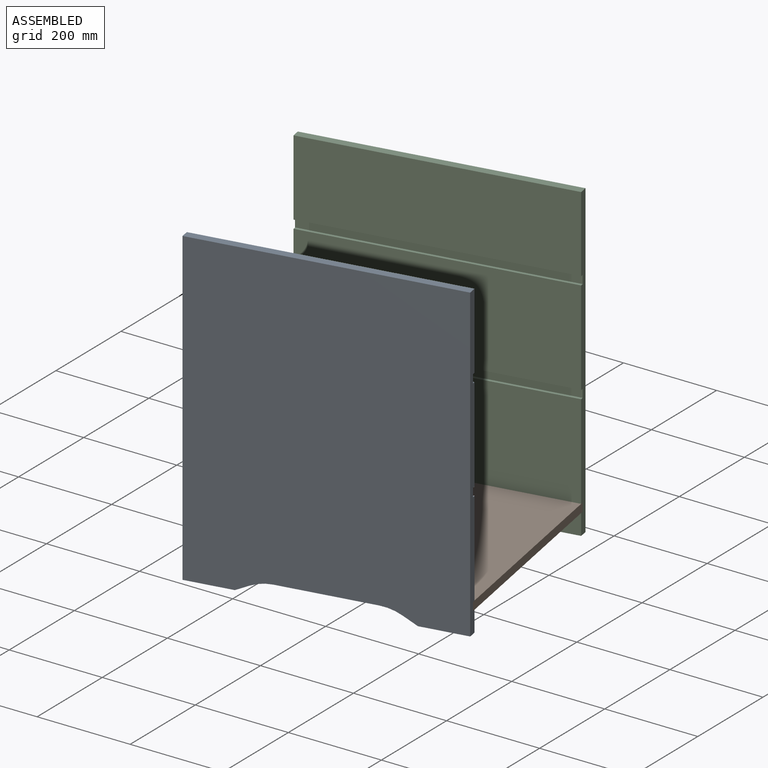
[diagram: assembled view]
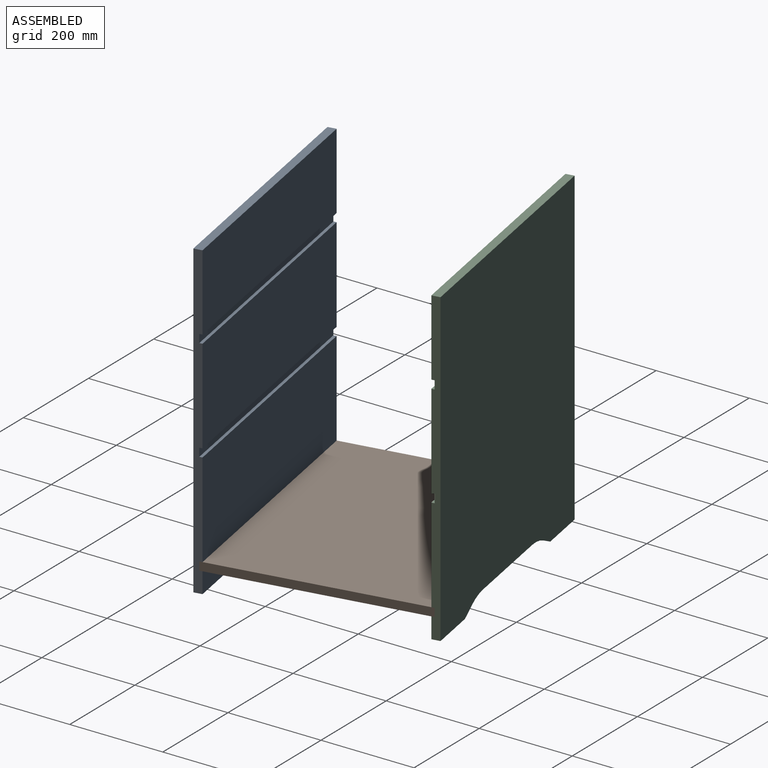
[diagram: assembled view, second angle]
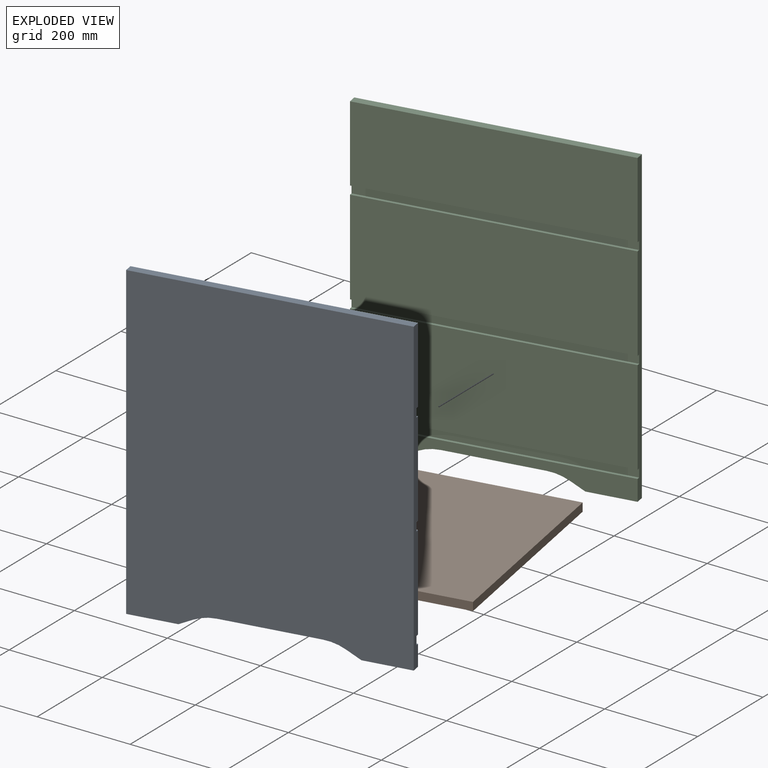
[diagram: exploded view]
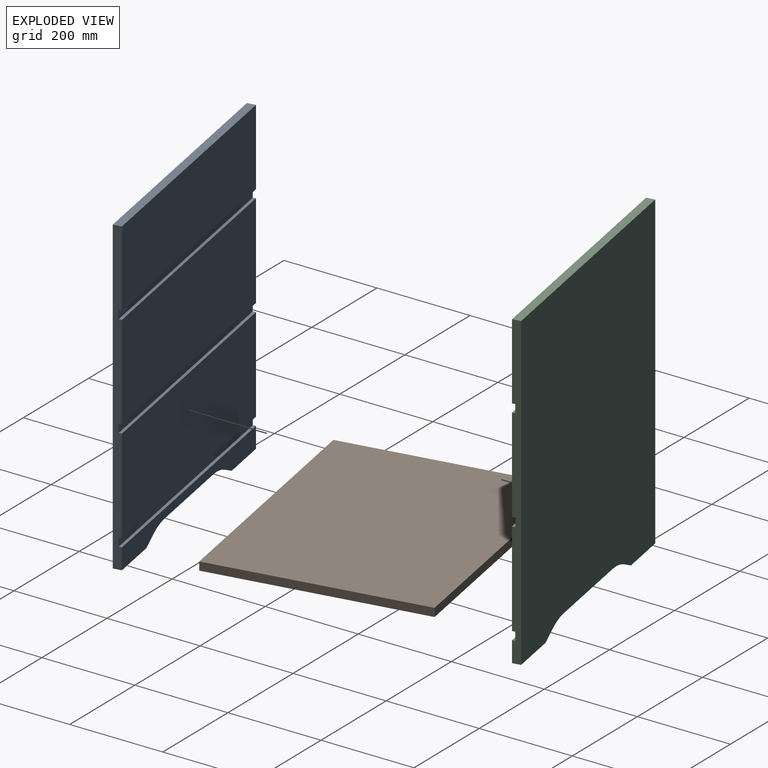
[diagram: exploded view, second angle]
ASSEMBLY  parts=3 mates=2
PART A: 24 faces, bbox 558.8x17.9x668 mm
  f0: plane 558.8x203.2mm, normal (0,-1,0), area 113548.2mm2, adj f3,f8,f18,f21
  f1: plane 558.8x203.2mm, normal (0,-1,0), area 113548.2mm2, adj f3,f8,f16,f19
  f2: plane 558.8x163.6mm, normal (0,-1,0), area 91420.5mm2, adj f3,f7,f8,f15
  f3: plane 668.02x17.86mm, normal (1,0,0), area 11588.1mm2, adj f0,f1,f2,f5,f6,f7,f9,f15
  f4: plane 101.6x17.86mm, normal (0,0,-1), area 1814.2mm2, adj f5,f6,f8,f10
  f5: plane 558.8x44.45mm, normal (0,-1,0), area 17184.4mm2, adj f3,f4,f8,f9,f10,f11,f12,f13
  f6: plane 668.02x558.8mm, normal (0,1,0), area 365635.3mm2, adj f3,f4,f7,f8,f9,f10,f11,f12
  f7: plane 558.8x17.86mm, normal (0,0,1), area 9978mm2, adj f2,f3,f6,f8
  f8: plane 668.02x17.86mm, normal (-1,0,0), area 11588.1mm2, adj f0,f1,f2,f4,f5,f6,f7,f15
  f9: plane 101.6x17.86mm, normal (0,0,-1), area 1814.2mm2, adj f3,f5,f6,f11
  f10: plane 29.35x17.86mm, normal (0.45,0,-0.89), area 585.9mm2, adj f4,f5,f6,f14
  f11: plane 29.35x17.86mm, normal (-0.45,0,-0.89), area 585.9mm2, adj f5,f6,f9,f12
  f12: cylinder r=101.6mm len=45.44mm, axis (0,-1,0), area 841.1mm2, adj f5,f6,f11,f13
  f13: plane 206.03x17.86mm, normal (0,0,-1), area 3678.9mm2, adj f5,f6,f12,f14
  f14: cylinder r=101.6mm len=45.44mm, axis (0,-1,0), area 841.1mm2, adj f5,f6,f10,f13
  f15: plane 558.8x6.35mm, normal (0,0,-1), area 3548.4mm2, adj f2,f3,f8,f17
  f16: plane 558.8x6.35mm, normal (0,0,1), area 3548.4mm2, adj f1,f3,f8,f17
  f17: plane 558.8x17.86mm, normal (0,-1,0), area 9978mm2, adj f3,f8,f15,f16
  f18: plane 558.8x6.35mm, normal (0,0,1), area 3548.4mm2, adj f0,f3,f8,f20
  f19: plane 558.8x6.35mm, normal (0,0,-1), area 3548.4mm2, adj f1,f3,f8,f20
  f20: plane 558.8x17.86mm, normal (0,-1,0), area 9978mm2, adj f3,f8,f18,f19
  f21: plane 558.8x6.35mm, normal (0,0,-1), area 3548.4mm2, adj f0,f3,f8,f23
  f22: plane 558.8x6.35mm, normal (0,0,1), area 3548.4mm2, adj f3,f5,f8,f23
  f23: plane 558.8x17.86mm, normal (0,-1,0), area 9978mm2, adj f3,f8,f21,f22
PART B: 6 faces, bbox 457.2x558.8x17.9 mm
  f0: plane 558.8x17.86mm, normal (1,0,0), area 9978mm2, adj f1,f3,f4,f5
  f1: plane 457.2x17.86mm, normal (0,1,0), area 8163.9mm2, adj f0,f2,f4,f5
  f2: plane 558.8x17.86mm, normal (-1,0,0), area 9978mm2, adj f1,f3,f4,f5
  f3: plane 457.2x17.86mm, normal (0,-1,0), area 8163.9mm2, adj f0,f2,f4,f5
  f4: plane 558.8x457.2mm, normal (0,0,1), area 255483.4mm2, adj f0,f1,f2,f3
  f5: plane 558.8x457.2mm, normal (0,0,-1), area 255483.4mm2, adj f0,f1,f2,f3
PART C: same geometry as A
PLACE A rot(axis=(0,0,-1),170deg) t=(177.76,-365.83,-15.01)mm
PLACE B rot(axis=(0,0,1),100deg) t=(136.06,-129.37,-304.57)mm
PLACE C rot(axis=(0,0,1),10deg) t=(94.37,107.09,-15.01)mm
MATE fastened A.f23 <-> B.f2  axis (-0.17,0.98,0) through (175.76,-354.5,-295.64)mm
MATE fastened B.f0 <-> C.f23  axis (-0.17,0.98,0) through (96.37,95.76,-295.64)mm
